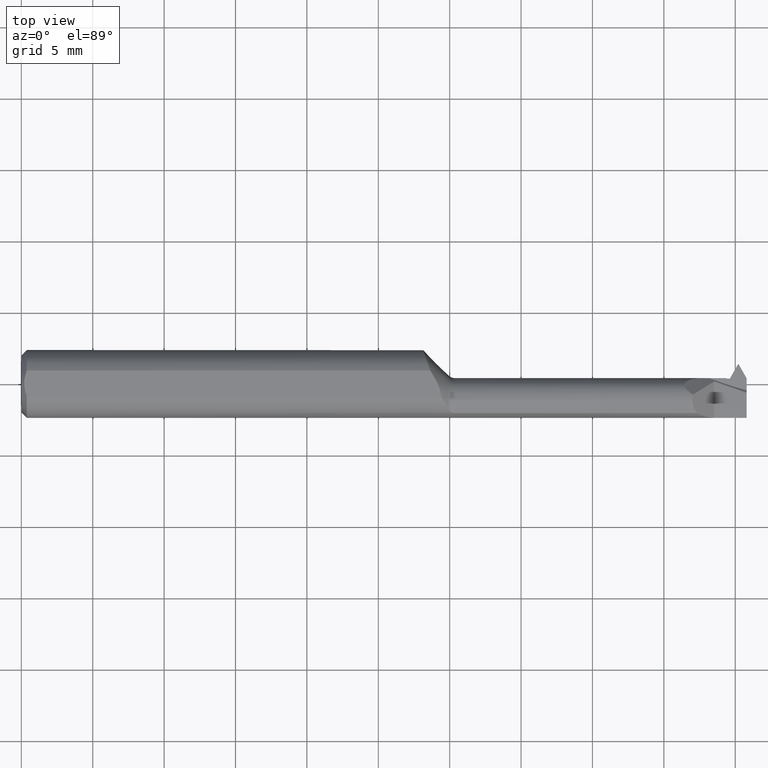
[diagram: clean part render]
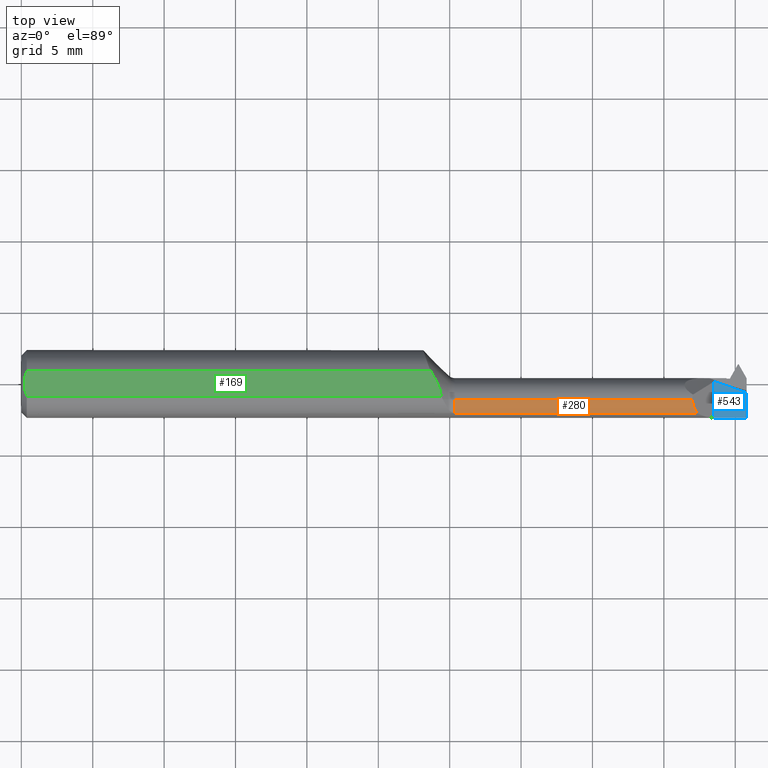
[diagram: same view with three faces highlighted in distinct colors, each labeled with its STEP entity id]
A machine part, top view with three faces highlighted in distinct colors.
Their STEP definitions:

[orange] entity #280 — the highlighted cylindrical surface (edge-blend (fillet) strip) has radius 1.524 mm, axis along (-1, -0, -0).
#5 = DIRECTION ( 'NONE',  ( -1.000000000000000000, -0.000000000000000000, -0.000000000000000000 ) ) ;
#18 = CARTESIAN_POINT ( 'NONE',  ( 1.850399999999999379, -0.04360000000000000681, 0.05999999999999999778 ) ) ;
#90 = CARTESIAN_POINT ( 'NONE',  ( 1.863470928347331190, -0.08098532110091731517, 0.04692907165266872044 ) ) ;
#109 = EDGE_CURVE ( 'NONE', #811, #419, #457, .T. ) ;
#131 = EDGE_CURVE ( 'NONE', #419, #294, #559, .T. ) ;
#168 = CARTESIAN_POINT ( 'NONE',  ( 1.567499999999999893, -0.08098532110091744007, 0.04692907165266853309 ) ) ;
#249 = CARTESIAN_POINT ( 'NONE',  ( 1.854926044998712609, -0.07025909403846858359, 0.05547395500128678852 ) ) ;
#280 = ADVANCED_FACE ( 'NONE', ( #329 ), #636, .T. ) ;
#294 = VERTEX_POINT ( 'NONE', #90 ) ;
#319 = ORIENTED_EDGE ( 'NONE', *, *, #740, .T. ) ;
#324 = CARTESIAN_POINT ( 'NONE',  ( 1.184999999999999831, -0.04360000000000000681, 0.000000000000000000 ) ) ;
#329 = FACE_OUTER_BOUND ( 'NONE', #1057, .T. ) ;
#346 = DIRECTION ( 'NONE',  ( 0.000000000000000000, 0.000000000000000000, 1.000000000000000000 ) ) ;
#395 = DIRECTION ( 'NONE',  ( 1.000000000000000000, 0.000000000000000000, 0.000000000000000000 ) ) ;
#415 = CARTESIAN_POINT ( 'NONE',  ( 1.195355339059327227, -0.04360000000000000681, 0.05999999999999999778 ) ) ;
#419 = VERTEX_POINT ( 'NONE', #498 ) ;
#425 = CARTESIAN_POINT ( 'NONE',  ( 1.184999999999999831, -0.04360000000000000681, 0.05999999999999999778 ) ) ;
#436 = AXIS2_PLACEMENT_3D ( 'NONE', #324, #5, #346 ) ;
#457 = CIRCLE ( 'NONE', #625, 0.05999999999999999778 ) ;
#498 = CARTESIAN_POINT ( 'NONE',  ( 1.195355339059327227, -0.08098532110091744007, 0.04692907165266853309 ) ) ;
#511 = ORIENTED_EDGE ( 'NONE', *, *, #750, .T. ) ;
#512 = ORIENTED_EDGE ( 'NONE', *, *, #131, .T. ) ;
#559 = LINE ( 'NONE', #168, #1058 ) ;
#580 = CARTESIAN_POINT ( 'NONE',  ( 1.850399999999999379, -0.05731375143557376067, 0.06000000000000002554 ) ) ;
#625 = AXIS2_PLACEMENT_3D ( 'NONE', #716, #726, #801 ) ;
#636 = CYLINDRICAL_SURFACE ( 'NONE', #436, 0.05999999999999999778 ) ;
#652 = LINE ( 'NONE', #425, #929 ) ;
#656 =( BOUNDED_CURVE ( )  B_SPLINE_CURVE ( 3, ( #757, #249, #580, #834 ),
 .UNSPECIFIED., .F., .F. ) 
 B_SPLINE_CURVE_WITH_KNOTS ( ( 4, 4 ),
 ( 5.610499824220556597, 6.283185307179586232 ),
 .UNSPECIFIED. ) 
 CURVE ( )  GEOMETRIC_REPRESENTATION_ITEM ( )  RATIONAL_B_SPLINE_CURVE ( ( 1.000000000000000000, 0.9626453375995694950, 0.9626453375995694950, 1.000000000000000000 ) ) 
 REPRESENTATION_ITEM ( '' )  );
#716 = CARTESIAN_POINT ( 'NONE',  ( 1.195355339059327227, -0.04360000000000000681, 0.000000000000000000 ) ) ;
#726 = DIRECTION ( 'NONE',  ( 1.000000000000000000, 0.000000000000000000, 0.000000000000000000 ) ) ;
#740 = EDGE_CURVE ( 'NONE', #742, #811, #652, .T. ) ;
#742 = VERTEX_POINT ( 'NONE', #18 ) ;
#750 = EDGE_CURVE ( 'NONE', #294, #742, #656, .T. ) ;
#757 = CARTESIAN_POINT ( 'NONE',  ( 1.863470928347331190, -0.08098532110091731517, 0.04692907165266872044 ) ) ;
#797 = ORIENTED_EDGE ( 'NONE', *, *, #109, .T. ) ;
#801 = DIRECTION ( 'NONE',  ( 0.000000000000000000, 0.000000000000000000, 1.000000000000000000 ) ) ;
#811 = VERTEX_POINT ( 'NONE', #415 ) ;
#834 = CARTESIAN_POINT ( 'NONE',  ( 1.850399999999999379, -0.04360000000000000681, 0.05999999999999999778 ) ) ;
#929 = VECTOR ( 'NONE', #980, 39.37007874015748143 ) ;
#980 = DIRECTION ( 'NONE',  ( -1.000000000000000000, -0.000000000000000000, -0.000000000000000000 ) ) ;
#1057 = EDGE_LOOP ( 'NONE', ( #511, #319, #797, #512 ) ) ;
#1058 = VECTOR ( 'NONE', #395, 39.37007874015748143 ) ;

[blue] entity #543 — the highlighted planar face has unit normal (-0, 0, -1).
#102 = VERTEX_POINT ( 'NONE', #609 ) ;
#106 = EDGE_CURVE ( 'NONE', #407, #776, #209, .T. ) ;
#176 = VERTEX_POINT ( 'NONE', #1051 ) ;
#193 = ORIENTED_EDGE ( 'NONE', *, *, #912, .T. ) ;
#201 = CARTESIAN_POINT ( 'NONE',  ( 2.000000000000000000, 0.2999999999999999889, -6.429183357567480113E-17 ) ) ;
#209 = LINE ( 'NONE', #981, #987 ) ;
#213 = CARTESIAN_POINT ( 'NONE',  ( 1.910000000000000142, 0.007137351560174314165, 3.000980612965380004E-17 ) ) ;
#221 = PLANE ( 'NONE',  #302 ) ;
#278 = CARTESIAN_POINT ( 'NONE',  ( 1.939382257108272833, -0.004989497491454789914, -6.829619984160658046E-17 ) ) ;
#302 = AXIS2_PLACEMENT_3D ( 'NONE', #542, #443, #305 ) ;
#305 = DIRECTION ( 'NONE',  ( -1.000000000000000000, 0.000000000000000000, 0.000000000000000000 ) ) ;
#322 = LINE ( 'NONE', #730, #572 ) ;
#407 = VERTEX_POINT ( 'NONE', #760 ) ;
#443 = DIRECTION ( 'NONE',  ( -0.000000000000000000, 0.000000000000000000, -1.000000000000000000 ) ) ;
#456 = CARTESIAN_POINT ( 'NONE',  ( 1.969416233223132418, -0.01537361813494903147, -6.829619984160658046E-17 ) ) ;
#484 = DIRECTION ( 'NONE',  ( -0.000000000000000000, 1.000000000000000000, -0.000000000000000000 ) ) ;
#517 = EDGE_LOOP ( 'NONE', ( #738, #193, #639, #686 ) ) ;
#542 = CARTESIAN_POINT ( 'NONE',  ( 1.910000000000000142, 0.2999999999999999889, -6.429183357567480113E-17 ) ) ;
#543 = ADVANCED_FACE ( 'NONE', ( #1018 ), #221, .F. ) ;
#572 = VECTOR ( 'NONE', #631, 39.37007874015748143 ) ;
#583 = EDGE_CURVE ( 'NONE', #102, #407, #322, .T. ) ;
#609 = CARTESIAN_POINT ( 'NONE',  ( 2.000000000000000000, -0.09359999999999989162, -6.429183357567480113E-17 ) ) ;
#631 = DIRECTION ( 'NONE',  ( -1.000000000000000000, -0.000000000000000000, -0.000000000000000000 ) ) ;
#639 = ORIENTED_EDGE ( 'NONE', *, *, #106, .F. ) ;
#686 = ORIENTED_EDGE ( 'NONE', *, *, #583, .F. ) ;
#730 = CARTESIAN_POINT ( 'NONE',  ( 2.000000000000000000, -0.09360000000000001652, -6.429183357567480113E-17 ) ) ;
#738 = ORIENTED_EDGE ( 'NONE', *, *, #866, .T. ) ;
#760 = CARTESIAN_POINT ( 'NONE',  ( 1.910000000000000142, -0.09359999999999998876, -6.429183357567478880E-17 ) ) ;
#766 =( BOUNDED_CURVE ( )  B_SPLINE_CURVE ( 3, ( #1016, #456, #278, #213 ),
 .UNSPECIFIED., .F., .F. ) 
 B_SPLINE_CURVE_WITH_KNOTS ( ( 4, 4 ),
 ( 0.2726088529369873892, 0.3891374444033928737 ),
 .UNSPECIFIED. ) 
 CURVE ( )  GEOMETRIC_REPRESENTATION_ITEM ( )  RATIONAL_B_SPLINE_CURVE ( ( 1.000000000000000000, 0.9988687440274405249, 0.9988687440274405249, 1.000000000000000000 ) ) 
 REPRESENTATION_ITEM ( '' )  );
#776 = VERTEX_POINT ( 'NONE', #819 ) ;
#781 = LINE ( 'NONE', #201, #1017 ) ;
#819 = CARTESIAN_POINT ( 'NONE',  ( 1.910000000000000142, 0.007137351560174314165, 3.000980612965380004E-17 ) ) ;
#866 = EDGE_CURVE ( 'NONE', #102, #176, #781, .T. ) ;
#912 = EDGE_CURVE ( 'NONE', #176, #776, #766, .T. ) ;
#933 = DIRECTION ( 'NONE',  ( -0.000000000000000000, 1.000000000000000000, -0.000000000000000000 ) ) ;
#981 = CARTESIAN_POINT ( 'NONE',  ( 1.910000000000000142, 0.2999999999999999889, -6.429183357567480113E-17 ) ) ;
#987 = VECTOR ( 'NONE', #484, 39.37007874015748143 ) ;
#1016 = CARTESIAN_POINT ( 'NONE',  ( 2.000000000000000000, -0.02397976907481485023, -6.429183357567480113E-17 ) ) ;
#1017 = VECTOR ( 'NONE', #933, 39.37007874015748143 ) ;
#1018 = FACE_OUTER_BOUND ( 'NONE', #517, .T. ) ;
#1051 = CARTESIAN_POINT ( 'NONE',  ( 2.000000000000000000, -0.02397976907481485023, -6.429183357567480113E-17 ) ) ;

[green] entity #169 — the highlighted planar face has unit normal (-0, 0, -1).
#9 = EDGE_CURVE ( 'NONE', #821, #905, #197, .T. ) ;
#27 = CARTESIAN_POINT ( 'NONE',  ( 1.141750224432351413, 0.01358083083026446515, 0.08660000000000001030 ) ) ;
#52 = VERTEX_POINT ( 'NONE', #931 ) ;
#67 = CARTESIAN_POINT ( 'NONE',  ( 0.01499999999999997689, -0.03551619348973089618, 0.08659999999999998255 ) ) ;
#68 = PLANE ( 'NONE',  #591 ) ;
#89 = CARTESIAN_POINT ( 'NONE',  ( 0.01499999999999997689, -0.03551619348973089618, 0.08659999999999998255 ) ) ;
#108 = CARTESIAN_POINT ( 'NONE',  ( 0.007999999999999731284, 1.373409503060175658E-17, 0.08659999999999998255 ) ) ;
#169 = ADVANCED_FACE ( 'NONE', ( #242 ), #68, .F. ) ;
#181 = CARTESIAN_POINT ( 'NONE',  ( 0.01287312418598231430, -0.02991098762076270859, 0.08660000000000001030 ) ) ;
#184 = VECTOR ( 'NONE', #719, 39.37007874015748143 ) ;
#197 = LINE ( 'NONE', #848, #314 ) ;
#242 = FACE_OUTER_BOUND ( 'NONE', #271, .T. ) ;
#247 = ORIENTED_EDGE ( 'NONE', *, *, #9, .F. ) ;
#248 = B_SPLINE_CURVE_WITH_KNOTS ( 'NONE', 3,
 ( #514, #417, #27, #413, #510, #835 ),
 .UNSPECIFIED., .F., .F.,
 ( 4, 2, 4 ),
 ( 0.004221996091487665095, 0.005214190001193084317, 0.006206383910898503539 ),
 .UNSPECIFIED. ) ;
#271 = EDGE_LOOP ( 'NONE', ( #838, #247, #705, #500, #571 ) ) ;
#285 = CARTESIAN_POINT ( 'NONE',  ( 0.007999999999999731284, 1.373409503060175658E-17, 0.08659999999999998255 ) ) ;
#311 = CARTESIAN_POINT ( 'NONE',  ( 2.000000000000000000, -0.03551619348973089618, 0.08659999999999998255 ) ) ;
#314 = VECTOR ( 'NONE', #506, 39.37007874015748143 ) ;
#345 = EDGE_CURVE ( 'NONE', #905, #52, #248, .T. ) ;
#356 = CARTESIAN_POINT ( 'NONE',  ( 0.01499999999999997689, 0.03551619348973089618, 0.08659999999999998255 ) ) ;
#413 = CARTESIAN_POINT ( 'NONE',  ( 1.152683531163872122, -0.009962793248527826093, 0.08659999999999998255 ) ) ;
#417 = CARTESIAN_POINT ( 'NONE',  ( 1.134990260883381952, 0.02470984047336736295, 0.08659999999999998255 ) ) ;
#420 = CARTESIAN_POINT ( 'NONE',  ( 0.01108864734896783041, -0.02405407040721167788, 0.08659999999999998255 ) ) ;
#500 = ORIENTED_EDGE ( 'NONE', *, *, #775, .T. ) ;
#506 = DIRECTION ( 'NONE',  ( 1.000000000000000000, 0.000000000000000000, 0.000000000000000000 ) ) ;
#510 = CARTESIAN_POINT ( 'NONE',  ( 1.156820612909630785, -0.02257368972052711462, 0.08660000000000001030 ) ) ;
#514 = CARTESIAN_POINT ( 'NONE',  ( 1.127701525703423302, 0.03551619348973095169, 0.08659999999999998255 ) ) ;
#524 = CARTESIAN_POINT ( 'NONE',  ( 0.008659489716310201507, 0.01217326722089584999, 0.08659999999999998255 ) ) ;
#571 = ORIENTED_EDGE ( 'NONE', *, *, #640, .F. ) ;
#575 = DIRECTION ( 'NONE',  ( -1.000000000000000000, 0.000000000000000000, 0.000000000000000000 ) ) ;
#591 = AXIS2_PLACEMENT_3D ( 'NONE', #721, #644, #575 ) ;
#593 = CARTESIAN_POINT ( 'NONE',  ( 0.008649077606599600218, -0.01212214432639825874, 0.08660000000000001030 ) ) ;
#616 = CARTESIAN_POINT ( 'NONE',  ( 0.01107849272577461977, 0.02400420685728455600, 0.08660000000000001030 ) ) ;
#640 = EDGE_CURVE ( 'NONE', #52, #655, #800, .T. ) ;
#644 = DIRECTION ( 'NONE',  ( -0.000000000000000000, 0.000000000000000000, -1.000000000000000000 ) ) ;
#655 = VERTEX_POINT ( 'NONE', #67 ) ;
#670 = CARTESIAN_POINT ( 'NONE',  ( 0.007999999999999741693, -0.006095550506083000954, 0.08659999999999998255 ) ) ;
#704 = B_SPLINE_CURVE_WITH_KNOTS ( 'NONE', 3,
 ( #356, #1023, #616, #524, #853, #285 ),
 .UNSPECIFIED., .F., .F.,
 ( 4, 2, 4 ),
 ( 0.001890229186177329410, 0.002347021077235529954, 0.002803812968293730064 ),
 .UNSPECIFIED. ) ;
#705 = ORIENTED_EDGE ( 'NONE', *, *, #897, .T. ) ;
#719 = DIRECTION ( 'NONE',  ( -1.000000000000000000, -0.000000000000000000, -0.000000000000000000 ) ) ;
#721 = CARTESIAN_POINT ( 'NONE',  ( 0.000000000000000000, 0.1749999999999999889, 0.08659999999999998255 ) ) ;
#744 = CARTESIAN_POINT ( 'NONE',  ( 0.01499999999999997689, 0.03551619348973089618, 0.08659999999999998255 ) ) ;
#775 = EDGE_CURVE ( 'NONE', #969, #655, #1040, .T. ) ;
#800 = LINE ( 'NONE', #311, #184 ) ;
#821 = VERTEX_POINT ( 'NONE', #744 ) ;
#835 = CARTESIAN_POINT ( 'NONE',  ( 1.158023520836405362, -0.03551619348973038964, 0.08659999999999998255 ) ) ;
#838 = ORIENTED_EDGE ( 'NONE', *, *, #345, .F. ) ;
#848 = CARTESIAN_POINT ( 'NONE',  ( 2.000000000000000000, 0.03551619348973089618, 0.08659999999999998255 ) ) ;
#853 = CARTESIAN_POINT ( 'NONE',  ( 0.007999999999999746897, 0.006084273629736270360, 0.08660000000000001030 ) ) ;
#897 = EDGE_CURVE ( 'NONE', #821, #969, #704, .T. ) ;
#905 = VERTEX_POINT ( 'NONE', #1006 ) ;
#931 = CARTESIAN_POINT ( 'NONE',  ( 1.158023520836405362, -0.03551619348973038964, 0.08659999999999998255 ) ) ;
#969 = VERTEX_POINT ( 'NONE', #1053 ) ;
#1006 = CARTESIAN_POINT ( 'NONE',  ( 1.127701525703423302, 0.03551619348973095169, 0.08659999999999998255 ) ) ;
#1023 = CARTESIAN_POINT ( 'NONE',  ( 0.01284132645814099055, 0.02982718733043053169, 0.08659999999999998255 ) ) ;
#1040 = B_SPLINE_CURVE_WITH_KNOTS ( 'NONE', 3,
 ( #108, #670, #593, #420, #181, #89 ),
 .UNSPECIFIED., .F., .F.,
 ( 4, 2, 4 ),
 ( 0.002803812968293730064, 0.003261451498734896978, 0.003719090029176063891 ),
 .UNSPECIFIED. ) ;
#1053 = CARTESIAN_POINT ( 'NONE',  ( 0.007999999999999731284, 1.373409503060175658E-17, 0.08659999999999998255 ) ) ;